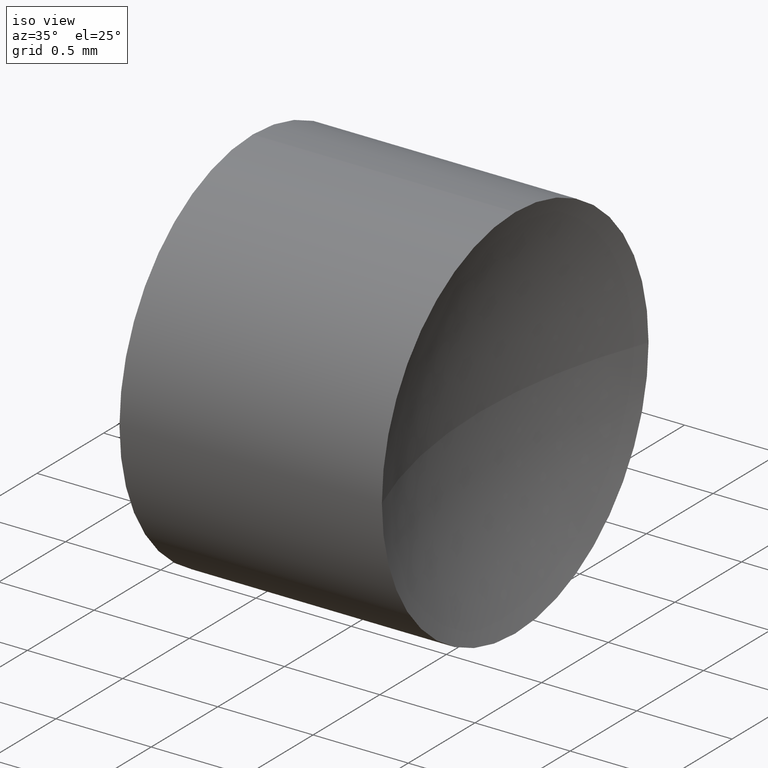
[diagram: clean part render]
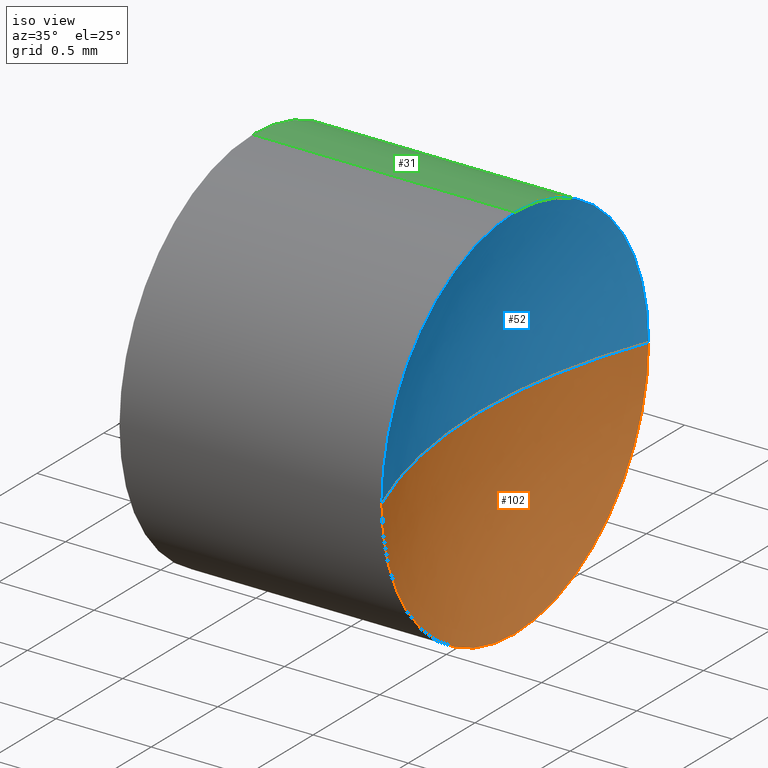
[diagram: same view with three faces highlighted in distinct colors, each labeled with its STEP entity id]
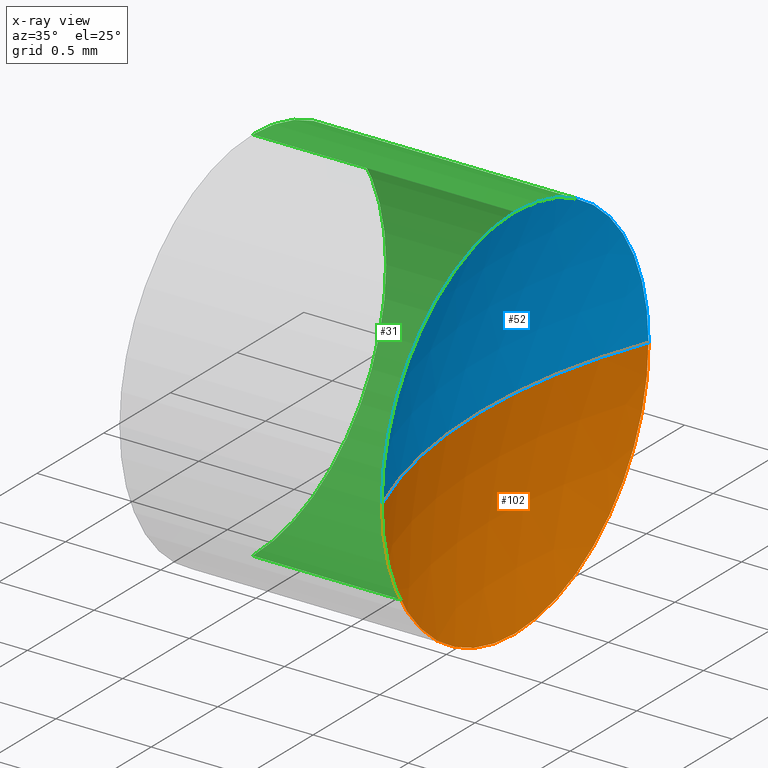
[diagram: x-ray of the same camera — body ghosted, the three highlighted faces saturated]
A machine part, iso view with three faces highlighted in distinct colors.
The next image is the same camera in x-ray (body ghosted, the three faces saturated) — at least one of them is partly hidden behind the body in this view.
Their STEP definitions:

[orange] entity #102 — the highlighted spherical surface has radius 2.74 mm.
#8 = CARTESIAN_POINT ( 'NONE',  ( 6.678613464750645400, 3.261130143649369800, 0.0000000000000000000 ) ) ;
#9 = AXIS2_PLACEMENT_3D ( 'NONE', #38, #39, #20 ) ;
#10 = DIRECTION ( 'NONE',  ( 0.0000000000000000000, 0.0000000000000000000, 1.000000000000000000 ) ) ;
#11 = CARTESIAN_POINT ( 'NONE',  ( 9.229613268749068000, 3.261130143649370700, 0.0000000000000000000 ) ) ;
#16 = ORIENTED_EDGE ( 'NONE', *, *, #74, .F. ) ;
#19 = CARTESIAN_POINT ( 'NONE',  ( 6.678613464750645400, 2.261130143649369400, 0.0000000000000000000 ) ) ;
#20 = DIRECTION ( 'NONE',  ( -1.000000000000000000, 0.0000000000000000000, 0.0000000000000000000 ) ) ;
#22 = CIRCLE ( 'NONE', #194, 2.739999999999997500 ) ;
#25 = DIRECTION ( 'NONE',  ( -1.000000000000000000, -0.0000000000000000000, -0.0000000000000000000 ) ) ;
#30 = ORIENTED_EDGE ( 'NONE', *, *, #200, .F. ) ;
#38 = CARTESIAN_POINT ( 'NONE',  ( 9.229613268749068000, 3.261130143649370700, 0.0000000000000000000 ) ) ;
#39 = DIRECTION ( 'NONE',  ( 0.0000000000000000000, 0.0000000000000000000, -1.000000000000000000 ) ) ;
#48 = SPHERICAL_SURFACE ( 'NONE', #140, 2.739999999999997500 ) ;
#58 = CARTESIAN_POINT ( 'NONE',  ( 6.678613464750645400, 3.261130143649369800, -1.000000000000001300 ) ) ;
#74 = EDGE_CURVE ( 'NONE', #100, #175, #214, .T. ) ;
#80 = CARTESIAN_POINT ( 'NONE',  ( 6.678613464750645400, 3.261130143649369800, 0.0000000000000000000 ) ) ;
#81 = DIRECTION ( 'NONE',  ( 0.0000000000000000000, -1.000000000000000000, -1.224646799147353200E-016 ) ) ;
#87 = VERTEX_POINT ( 'NONE', #58 ) ;
#92 = DIRECTION ( 'NONE',  ( 0.0000000000000000000, -1.000000000000000000, 0.0000000000000000000 ) ) ;
#100 = VERTEX_POINT ( 'NONE', #19 ) ;
#102 = ADVANCED_FACE ( 'NONE', ( #118 ), #48, .F. ) ;
#115 = CIRCLE ( 'NONE', #163, 1.000000000000001300 ) ;
#118 = FACE_OUTER_BOUND ( 'NONE', #125, .T. ) ;
#125 = EDGE_LOOP ( 'NONE', ( #30, #229, #16, #185 ) ) ;
#133 = DIRECTION ( 'NONE',  ( 0.0000000000000000000, -1.224646799147353200E-016, 1.000000000000000000 ) ) ;
#136 = CIRCLE ( 'NONE', #151, 1.000000000000001300 ) ;
#140 = AXIS2_PLACEMENT_3D ( 'NONE', #146, #193, #92 ) ;
#146 = CARTESIAN_POINT ( 'NONE',  ( 9.229613268749068000, 3.261130143649370700, 0.0000000000000000000 ) ) ;
#149 = CARTESIAN_POINT ( 'NONE',  ( 6.678613464750645400, 4.261130143649371100, 1.224646799147353900E-016 ) ) ;
#151 = AXIS2_PLACEMENT_3D ( 'NONE', #8, #25, #10 ) ;
#152 = VERTEX_POINT ( 'NONE', #149 ) ;
#163 = AXIS2_PLACEMENT_3D ( 'NONE', #80, #196, #182 ) ;
#175 = VERTEX_POINT ( 'NONE', #181 ) ;
#181 = CARTESIAN_POINT ( 'NONE',  ( 6.489613268749069500, 3.261130143649370700, 0.0000000000000000000 ) ) ;
#182 = DIRECTION ( 'NONE',  ( 0.0000000000000000000, 0.0000000000000000000, 1.000000000000000000 ) ) ;
#185 = ORIENTED_EDGE ( 'NONE', *, *, #191, .F. ) ;
#191 = EDGE_CURVE ( 'NONE', #87, #100, #136, .T. ) ;
#193 = DIRECTION ( 'NONE',  ( 0.0000000000000000000, 0.0000000000000000000, 1.000000000000000000 ) ) ;
#194 = AXIS2_PLACEMENT_3D ( 'NONE', #11, #133, #81 ) ;
#196 = DIRECTION ( 'NONE',  ( -1.000000000000000000, -0.0000000000000000000, -0.0000000000000000000 ) ) ;
#200 = EDGE_CURVE ( 'NONE', #152, #87, #115, .T. ) ;
#214 = CIRCLE ( 'NONE', #9, 2.739999999999997500 ) ;
#224 = EDGE_CURVE ( 'NONE', #152, #175, #22, .T. ) ;
#229 = ORIENTED_EDGE ( 'NONE', *, *, #224, .T. ) ;

[blue] entity #52 — the highlighted spherical surface has radius 2.74 mm.
#9 = AXIS2_PLACEMENT_3D ( 'NONE', #38, #39, #20 ) ;
#11 = CARTESIAN_POINT ( 'NONE',  ( 9.229613268749068000, 3.261130143649370700, 0.0000000000000000000 ) ) ;
#15 = AXIS2_PLACEMENT_3D ( 'NONE', #177, #147, #77 ) ;
#18 = DIRECTION ( 'NONE',  ( 0.0000000000000000000, 0.0000000000000000000, 1.000000000000000000 ) ) ;
#19 = CARTESIAN_POINT ( 'NONE',  ( 6.678613464750645400, 2.261130143649369400, 0.0000000000000000000 ) ) ;
#20 = DIRECTION ( 'NONE',  ( -1.000000000000000000, 0.0000000000000000000, 0.0000000000000000000 ) ) ;
#22 = CIRCLE ( 'NONE', #194, 2.739999999999997500 ) ;
#32 = FACE_OUTER_BOUND ( 'NONE', #91, .T. ) ;
#36 = DIRECTION ( 'NONE',  ( -1.000000000000000000, -0.0000000000000000000, -0.0000000000000000000 ) ) ;
#38 = CARTESIAN_POINT ( 'NONE',  ( 9.229613268749068000, 3.261130143649370700, 0.0000000000000000000 ) ) ;
#39 = DIRECTION ( 'NONE',  ( 0.0000000000000000000, 0.0000000000000000000, -1.000000000000000000 ) ) ;
#52 = ADVANCED_FACE ( 'NONE', ( #32 ), #126, .F. ) ;
#55 = EDGE_CURVE ( 'NONE', #100, #184, #161, .T. ) ;
#74 = EDGE_CURVE ( 'NONE', #100, #175, #214, .T. ) ;
#77 = DIRECTION ( 'NONE',  ( 0.0000000000000000000, 0.0000000000000000000, 1.000000000000000000 ) ) ;
#81 = DIRECTION ( 'NONE',  ( 0.0000000000000000000, -1.000000000000000000, -1.224646799147353200E-016 ) ) ;
#88 = ORIENTED_EDGE ( 'NONE', *, *, #74, .T. ) ;
#91 = EDGE_LOOP ( 'NONE', ( #121, #220, #138, #88 ) ) ;
#97 = CARTESIAN_POINT ( 'NONE',  ( 6.678613464750645400, 3.261130143649369800, 1.000000000000001300 ) ) ;
#100 = VERTEX_POINT ( 'NONE', #19 ) ;
#119 = AXIS2_PLACEMENT_3D ( 'NONE', #212, #36, #160 ) ;
#121 = ORIENTED_EDGE ( 'NONE', *, *, #224, .F. ) ;
#124 = CIRCLE ( 'NONE', #119, 1.000000000000001300 ) ;
#126 = SPHERICAL_SURFACE ( 'NONE', #213, 2.739999999999997500 ) ;
#133 = DIRECTION ( 'NONE',  ( 0.0000000000000000000, -1.224646799147353200E-016, 1.000000000000000000 ) ) ;
#138 = ORIENTED_EDGE ( 'NONE', *, *, #55, .F. ) ;
#144 = DIRECTION ( 'NONE',  ( 0.0000000000000000000, -1.000000000000000000, 0.0000000000000000000 ) ) ;
#147 = DIRECTION ( 'NONE',  ( -1.000000000000000000, -0.0000000000000000000, -0.0000000000000000000 ) ) ;
#149 = CARTESIAN_POINT ( 'NONE',  ( 6.678613464750645400, 4.261130143649371100, 1.224646799147353900E-016 ) ) ;
#152 = VERTEX_POINT ( 'NONE', #149 ) ;
#156 = EDGE_CURVE ( 'NONE', #184, #152, #124, .T. ) ;
#159 = CARTESIAN_POINT ( 'NONE',  ( 9.229613268749068000, 3.261130143649370700, 0.0000000000000000000 ) ) ;
#160 = DIRECTION ( 'NONE',  ( 0.0000000000000000000, 0.0000000000000000000, 1.000000000000000000 ) ) ;
#161 = CIRCLE ( 'NONE', #15, 1.000000000000001300 ) ;
#175 = VERTEX_POINT ( 'NONE', #181 ) ;
#177 = CARTESIAN_POINT ( 'NONE',  ( 6.678613464750645400, 3.261130143649369800, 0.0000000000000000000 ) ) ;
#181 = CARTESIAN_POINT ( 'NONE',  ( 6.489613268749069500, 3.261130143649370700, 0.0000000000000000000 ) ) ;
#184 = VERTEX_POINT ( 'NONE', #97 ) ;
#194 = AXIS2_PLACEMENT_3D ( 'NONE', #11, #133, #81 ) ;
#212 = CARTESIAN_POINT ( 'NONE',  ( 6.678613464750645400, 3.261130143649369800, 0.0000000000000000000 ) ) ;
#213 = AXIS2_PLACEMENT_3D ( 'NONE', #159, #18, #144 ) ;
#214 = CIRCLE ( 'NONE', #9, 2.739999999999997500 ) ;
#220 = ORIENTED_EDGE ( 'NONE', *, *, #156, .F. ) ;
#224 = EDGE_CURVE ( 'NONE', #152, #175, #22, .T. ) ;

[green] entity #31 — the highlighted cylindrical surface (partial cylindrical patch) has radius 1 mm, axis along (-1, -0, -0).
#1 = AXIS2_PLACEMENT_3D ( 'NONE', #189, #190, #106 ) ;
#6 = DIRECTION ( 'NONE',  ( -1.000000000000000000, -0.0000000000000000000, -0.0000000000000000000 ) ) ;
#17 = VECTOR ( 'NONE', #169, 1000.000000000000000 ) ;
#31 = ADVANCED_FACE ( 'NONE', ( #157 ), #85, .T. ) ;
#33 = EDGE_CURVE ( 'NONE', #142, #37, #76, .T. ) ;
#36 = DIRECTION ( 'NONE',  ( -1.000000000000000000, -0.0000000000000000000, -0.0000000000000000000 ) ) ;
#37 = VERTEX_POINT ( 'NONE', #72 ) ;
#47 = CARTESIAN_POINT ( 'NONE',  ( 5.306232639267102900, 3.261130143649369800, 1.000000000000000400 ) ) ;
#54 = ORIENTED_EDGE ( 'NONE', *, *, #200, .T. ) ;
#58 = CARTESIAN_POINT ( 'NONE',  ( 6.678613464750645400, 3.261130143649369800, -1.000000000000001300 ) ) ;
#60 = CARTESIAN_POINT ( 'NONE',  ( 5.300613072747492700, 3.261130143649369800, 0.0000000000000000000 ) ) ;
#68 = LINE ( 'NONE', #47, #17 ) ;
#70 = ORIENTED_EDGE ( 'NONE', *, *, #228, .F. ) ;
#72 = CARTESIAN_POINT ( 'NONE',  ( 5.300613072747492700, 3.261130143649369800, -1.000000000000000400 ) ) ;
#76 = CIRCLE ( 'NONE', #1, 1.000000000000000400 ) ;
#78 = DIRECTION ( 'NONE',  ( -1.000000000000000000, -0.0000000000000000000, -0.0000000000000000000 ) ) ;
#80 = CARTESIAN_POINT ( 'NONE',  ( 6.678613464750645400, 3.261130143649369800, 0.0000000000000000000 ) ) ;
#82 = VERTEX_POINT ( 'NONE', #94 ) ;
#85 = CYLINDRICAL_SURFACE ( 'NONE', #174, 1.000000000000000400 ) ;
#87 = VERTEX_POINT ( 'NONE', #58 ) ;
#94 = CARTESIAN_POINT ( 'NONE',  ( 5.300613072747492700, 3.261130143649369800, 1.000000000000000400 ) ) ;
#97 = CARTESIAN_POINT ( 'NONE',  ( 6.678613464750645400, 3.261130143649369800, 1.000000000000001300 ) ) ;
#99 = EDGE_LOOP ( 'NONE', ( #54, #227, #180, #173, #70, #232 ) ) ;
#105 = DIRECTION ( 'NONE',  ( -1.000000000000000000, -0.0000000000000000000, -0.0000000000000000000 ) ) ;
#106 = DIRECTION ( 'NONE',  ( 0.0000000000000000000, 0.0000000000000000000, 1.000000000000000000 ) ) ;
#107 = EDGE_CURVE ( 'NONE', #82, #142, #211, .T. ) ;
#110 = DIRECTION ( 'NONE',  ( 0.0000000000000000000, 0.0000000000000000000, 1.000000000000000000 ) ) ;
#115 = CIRCLE ( 'NONE', #163, 1.000000000000001300 ) ;
#119 = AXIS2_PLACEMENT_3D ( 'NONE', #212, #36, #160 ) ;
#120 = EDGE_CURVE ( 'NONE', #87, #37, #155, .T. ) ;
#124 = CIRCLE ( 'NONE', #119, 1.000000000000001300 ) ;
#142 = VERTEX_POINT ( 'NONE', #179 ) ;
#143 = DIRECTION ( 'NONE',  ( 0.0000000000000000000, 0.0000000000000000000, 1.000000000000000000 ) ) ;
#149 = CARTESIAN_POINT ( 'NONE',  ( 6.678613464750645400, 4.261130143649371100, 1.224646799147353900E-016 ) ) ;
#152 = VERTEX_POINT ( 'NONE', #149 ) ;
#155 = LINE ( 'NONE', #216, #192 ) ;
#156 = EDGE_CURVE ( 'NONE', #184, #152, #124, .T. ) ;
#157 = FACE_OUTER_BOUND ( 'NONE', #99, .T. ) ;
#160 = DIRECTION ( 'NONE',  ( 0.0000000000000000000, 0.0000000000000000000, 1.000000000000000000 ) ) ;
#163 = AXIS2_PLACEMENT_3D ( 'NONE', #80, #196, #182 ) ;
#169 = DIRECTION ( 'NONE',  ( -1.000000000000000000, -0.0000000000000000000, -0.0000000000000000000 ) ) ;
#173 = ORIENTED_EDGE ( 'NONE', *, *, #107, .F. ) ;
#174 = AXIS2_PLACEMENT_3D ( 'NONE', #210, #105, #143 ) ;
#179 = CARTESIAN_POINT ( 'NONE',  ( 5.300613072747492700, 4.261130143649369400, 0.0000000000000000000 ) ) ;
#180 = ORIENTED_EDGE ( 'NONE', *, *, #33, .F. ) ;
#182 = DIRECTION ( 'NONE',  ( 0.0000000000000000000, 0.0000000000000000000, 1.000000000000000000 ) ) ;
#184 = VERTEX_POINT ( 'NONE', #97 ) ;
#186 = AXIS2_PLACEMENT_3D ( 'NONE', #60, #78, #110 ) ;
#189 = CARTESIAN_POINT ( 'NONE',  ( 5.300613072747492700, 3.261130143649369800, 0.0000000000000000000 ) ) ;
#190 = DIRECTION ( 'NONE',  ( -1.000000000000000000, -0.0000000000000000000, -0.0000000000000000000 ) ) ;
#192 = VECTOR ( 'NONE', #6, 1000.000000000000000 ) ;
#196 = DIRECTION ( 'NONE',  ( -1.000000000000000000, -0.0000000000000000000, -0.0000000000000000000 ) ) ;
#200 = EDGE_CURVE ( 'NONE', #152, #87, #115, .T. ) ;
#210 = CARTESIAN_POINT ( 'NONE',  ( 5.306232639267102900, 3.261130143649369800, 0.0000000000000000000 ) ) ;
#211 = CIRCLE ( 'NONE', #186, 1.000000000000000400 ) ;
#212 = CARTESIAN_POINT ( 'NONE',  ( 6.678613464750645400, 3.261130143649369800, 0.0000000000000000000 ) ) ;
#216 = CARTESIAN_POINT ( 'NONE',  ( 5.306232639267102900, 3.261130143649369800, -1.000000000000000400 ) ) ;
#227 = ORIENTED_EDGE ( 'NONE', *, *, #120, .T. ) ;
#228 = EDGE_CURVE ( 'NONE', #184, #82, #68, .T. ) ;
#232 = ORIENTED_EDGE ( 'NONE', *, *, #156, .T. ) ;